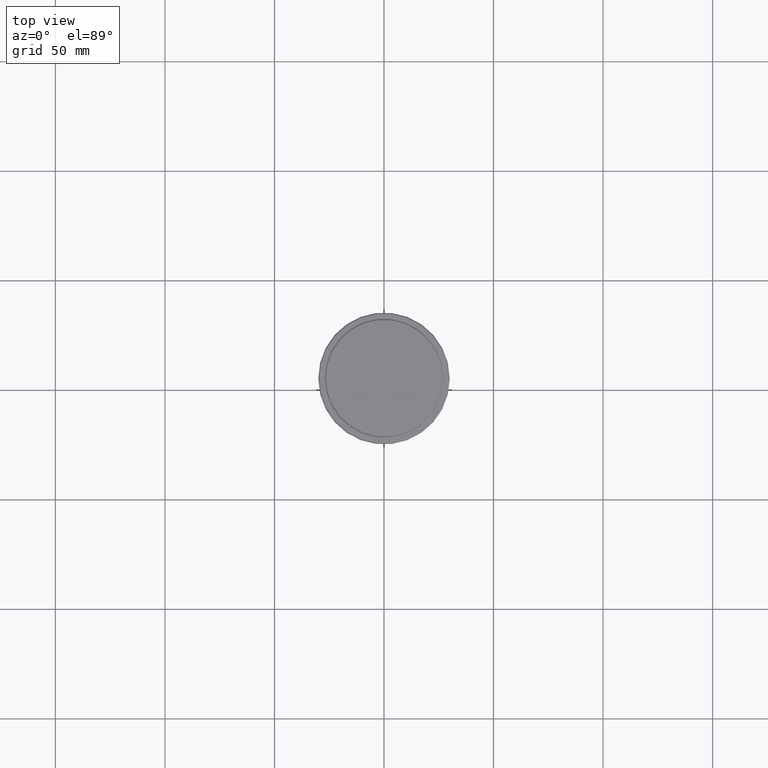
[diagram: clean part render]
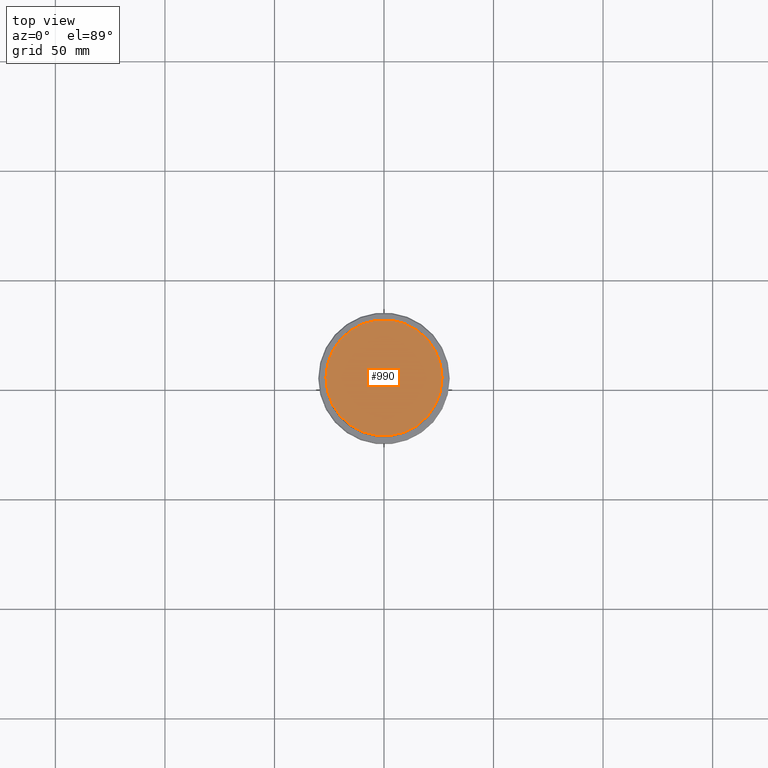
[diagram: same view with one face highlighted and labeled with its STEP entity id]
A machine part, top view. The second image highlights one B-rep face of the part: STEP entity #990.
In plain terms, the highlighted planar face has unit normal (0, -0, 1).
Its self-contained STEP definition (entity closure, byte-faithful):
#94 = DIRECTION ( 'NONE',  ( 1.000000000000000000, 0.000000000000000000, 0.000000000000000000 ) ) ;
#176 = DIRECTION ( 'NONE',  ( 1.000000000000000000, 0.000000000000000000, 0.000000000000000000 ) ) ;
#200 = DIRECTION ( 'NONE',  ( -0.000000000000000000, -0.000000000000000000, 1.000000000000000000 ) ) ;
#275 = DIRECTION ( 'NONE',  ( -0.000000000000000000, -0.000000000000000000, 1.000000000000000000 ) ) ;
#311 = DIRECTION ( 'NONE',  ( 0.000000000000000000, -0.000000000000000000, 1.000000000000000000 ) ) ;
#369 = VERTEX_POINT ( 'NONE', #618 ) ;
#420 = PLANE ( 'NONE',  #492 ) ;
#439 = EDGE_CURVE ( 'NONE', #496, #369, #986, .T. ) ;
#445 = AXIS2_PLACEMENT_3D ( 'NONE', #901, #275, #1390 ) ;
#478 = EDGE_CURVE ( 'NONE', #369, #496, #1362, .T. ) ;
#491 = CARTESIAN_POINT ( 'NONE',  ( 26.50000000000002487, 3.275930187719171130E-15, 0.000000000000000000 ) ) ;
#492 = AXIS2_PLACEMENT_3D ( 'NONE', #1299, #311, #176 ) ;
#496 = VERTEX_POINT ( 'NONE', #491 ) ;
#545 = EDGE_LOOP ( 'NONE', ( #1249, #964 ) ) ;
#618 = CARTESIAN_POINT ( 'NONE',  ( -26.50000000000002487, 0.000000000000000000, 0.000000000000000000 ) ) ;
#624 = CARTESIAN_POINT ( 'NONE',  ( 0.000000000000000000, 0.000000000000000000, 0.000000000000000000 ) ) ;
#901 = CARTESIAN_POINT ( 'NONE',  ( 0.000000000000000000, 0.000000000000000000, 0.000000000000000000 ) ) ;
#964 = ORIENTED_EDGE ( 'NONE', *, *, #439, .T. ) ;
#986 = CIRCLE ( 'NONE', #1218, 26.50000000000002487 ) ;
#990 = ADVANCED_FACE ( 'NONE', ( #1402 ), #420, .T. ) ;
#1218 = AXIS2_PLACEMENT_3D ( 'NONE', #624, #200, #94 ) ;
#1249 = ORIENTED_EDGE ( 'NONE', *, *, #478, .T. ) ;
#1299 = CARTESIAN_POINT ( 'NONE',  ( 0.000000000000000000, 0.000000000000000000, 0.000000000000000000 ) ) ;
#1362 = CIRCLE ( 'NONE', #445, 26.50000000000002487 ) ;
#1390 = DIRECTION ( 'NONE',  ( 1.000000000000000000, 0.000000000000000000, 0.000000000000000000 ) ) ;
#1402 = FACE_OUTER_BOUND ( 'NONE', #545, .T. ) ;